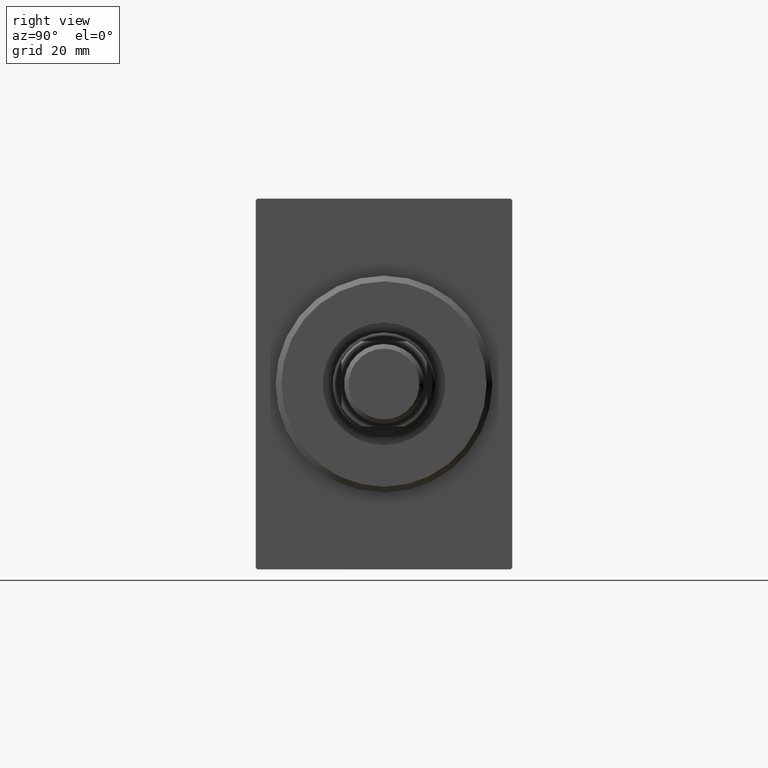
[diagram: clean part render]
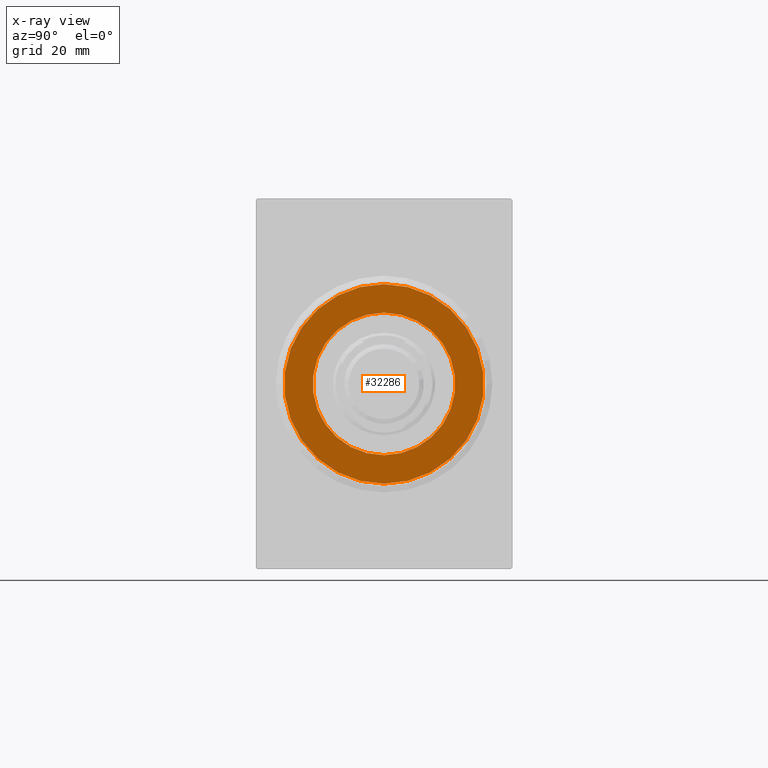
[diagram: x-ray — body ghosted, one internal face saturated and labeled with its STEP entity id]
A machine part, right view, then the same camera in x-ray: the body is ghosted and one INTERNAL B-rep face — a face not visible from any outside direction — is saturated and labeled: STEP entity #32286.
In plain terms, the highlighted planar face has unit normal (1, 0, -0).
Its self-contained STEP definition (entity closure, byte-faithful):
#850 = ORIENTED_EDGE ( 'NONE', *, *, #26765, .T. ) ;
#964 = ORIENTED_EDGE ( 'NONE', *, *, #34585, .F. ) ;
#2354 = DIRECTION ( 'NONE',  ( -1.000000000000000000, 0.000000000000000000, 0.000000000000000000 ) ) ;
#2448 = CARTESIAN_POINT ( 'NONE',  ( 5.000000000000000000, 2.143131898507868643E-15, -17.50000000000000355 ) ) ;
#3255 = CARTESIAN_POINT ( 'NONE',  ( 5.000000000000000000, 0.000000000000000000, 0.000000000000000000 ) ) ;
#3299 = EDGE_CURVE ( 'NONE', #26595, #18658, #11138, .T. ) ;
#5578 = CARTESIAN_POINT ( 'NONE',  ( 4.999999999999997335, 0.000000000000000000, 0.000000000000000000 ) ) ;
#5829 = CARTESIAN_POINT ( 'NONE',  ( 5.000000000000000000, 0.000000000000000000, 0.000000000000000000 ) ) ;
#5945 = CIRCLE ( 'NONE', #13570, 17.50000000000000355 ) ;
#6821 = FACE_OUTER_BOUND ( 'NONE', #7598, .T. ) ;
#7598 = EDGE_LOOP ( 'NONE', ( #8347, #850 ) ) ;
#8347 = ORIENTED_EDGE ( 'NONE', *, *, #3299, .T. ) ;
#8660 = DIRECTION ( 'NONE',  ( 0.000000000000000000, 0.000000000000000000, 1.000000000000000000 ) ) ;
#11138 = CIRCLE ( 'NONE', #22929, 17.50000000000000355 ) ;
#11458 = CARTESIAN_POINT ( 'NONE',  ( 4.999999999999997335, 0.000000000000000000, 0.000000000000000000 ) ) ;
#11977 = CARTESIAN_POINT ( 'NONE',  ( 5.000000000000000000, 0.000000000000000000, 17.50000000000000355 ) ) ;
#13570 = AXIS2_PLACEMENT_3D ( 'NONE', #3255, #16517, #26520 ) ;
#14074 = AXIS2_PLACEMENT_3D ( 'NONE', #5578, #42142, #32110 ) ;
#14690 = EDGE_CURVE ( 'NONE', #23048, #17952, #32832, .T. ) ;
#16517 = DIRECTION ( 'NONE',  ( -1.000000000000000000, 0.000000000000000000, 0.000000000000000000 ) ) ;
#17952 = VERTEX_POINT ( 'NONE', #26140 ) ;
#18168 = CARTESIAN_POINT ( 'NONE',  ( 4.999999999999997335, 0.000000000000000000, 12.50000000000000000 ) ) ;
#18658 = VERTEX_POINT ( 'NONE', #2448 ) ;
#20096 = PLANE ( 'NONE',  #37894 ) ;
#22929 = AXIS2_PLACEMENT_3D ( 'NONE', #5829, #2354, #8660 ) ;
#23048 = VERTEX_POINT ( 'NONE', #18168 ) ;
#23142 = FACE_BOUND ( 'NONE', #30100, .T. ) ;
#24237 = ORIENTED_EDGE ( 'NONE', *, *, #14690, .F. ) ;
#24287 = DIRECTION ( 'NONE',  ( -1.000000000000000000, 0.000000000000000000, 0.000000000000000000 ) ) ;
#25551 = CIRCLE ( 'NONE', #27615, 12.50000000000000000 ) ;
#26140 = CARTESIAN_POINT ( 'NONE',  ( 4.999999999999997335, 1.530808498934191521E-15, -12.50000000000000000 ) ) ;
#26520 = DIRECTION ( 'NONE',  ( 0.000000000000000000, 0.000000000000000000, 1.000000000000000000 ) ) ;
#26595 = VERTEX_POINT ( 'NONE', #11977 ) ;
#26765 = EDGE_CURVE ( 'NONE', #18658, #26595, #5945, .T. ) ;
#27549 = DIRECTION ( 'NONE',  ( 0.000000000000000000, 0.000000000000000000, 1.000000000000000000 ) ) ;
#27615 = AXIS2_PLACEMENT_3D ( 'NONE', #11458, #24287, #27549 ) ;
#30100 = EDGE_LOOP ( 'NONE', ( #24237, #964 ) ) ;
#32110 = DIRECTION ( 'NONE',  ( 0.000000000000000000, 0.000000000000000000, 1.000000000000000000 ) ) ;
#32286 = ADVANCED_FACE ( 'NONE', ( #23142, #6821 ), #20096, .T. ) ;
#32832 = CIRCLE ( 'NONE', #14074, 12.50000000000000000 ) ;
#33361 = DIRECTION ( 'NONE',  ( 0.000000000000000000, 0.000000000000000000, 1.000000000000000000 ) ) ;
#33795 = CARTESIAN_POINT ( 'NONE',  ( 5.000000000000000000, 0.000000000000000000, 0.000000000000000000 ) ) ;
#34585 = EDGE_CURVE ( 'NONE', #17952, #23048, #25551, .T. ) ;
#37894 = AXIS2_PLACEMENT_3D ( 'NONE', #33795, #40543, #33361 ) ;
#40543 = DIRECTION ( 'NONE',  ( -1.000000000000000000, 0.000000000000000000, 0.000000000000000000 ) ) ;
#42142 = DIRECTION ( 'NONE',  ( -1.000000000000000000, 0.000000000000000000, 0.000000000000000000 ) ) ;